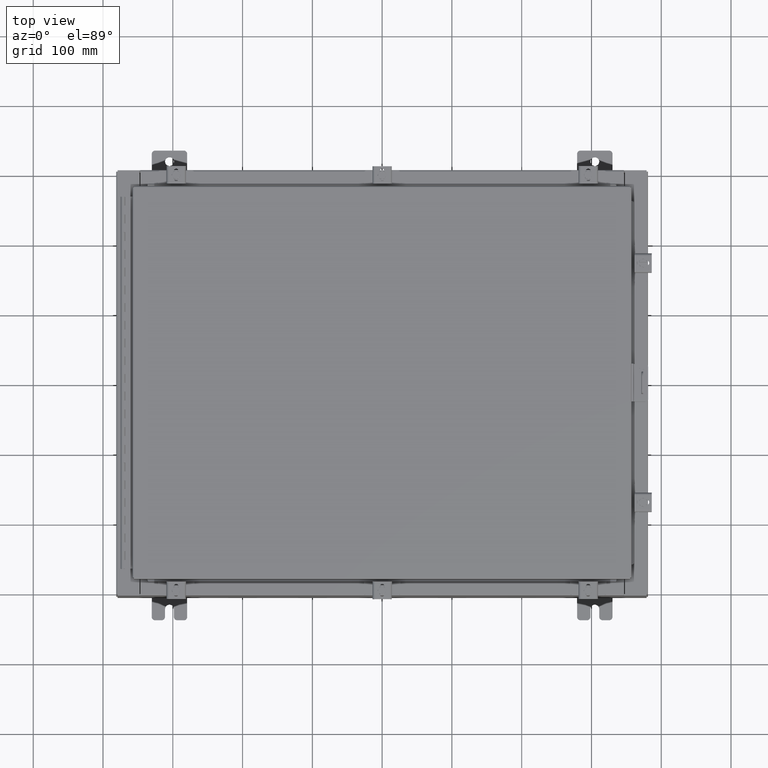
[diagram: clean part render]
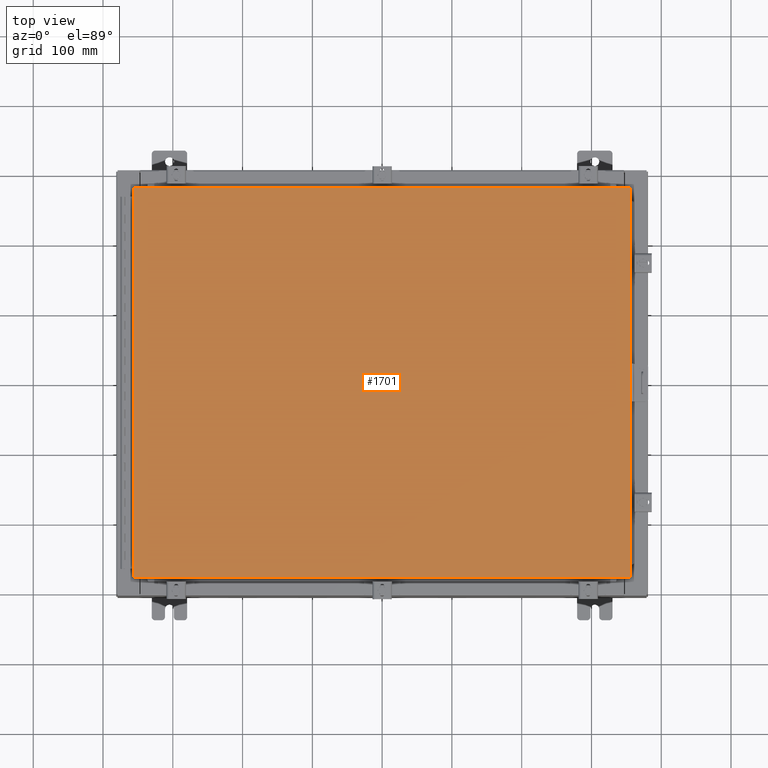
[diagram: same view with one face highlighted and labeled with its STEP entity id]
A machine part, top view. The second image highlights one B-rep face of the part: STEP entity #1701.
In plain terms, the highlighted planar face has unit normal (0, 0, -1).
Its self-contained STEP definition (entity closure, byte-faithful):
#46 = VECTOR ( 'NONE', #12079, 39.37007874015748100 ) ;
#195 = VECTOR ( 'NONE', #641, 39.37007874015748100 ) ;
#641 = DIRECTION ( 'NONE',  ( 0.0000000000000000000, 1.000000000000000000, 0.0000000000000000000 ) ) ;
#1639 = VECTOR ( 'NONE', #6820, 39.37007874015748100 ) ;
#1701 = ADVANCED_FACE ( 'NONE', ( #14315 ), #2142, .F. ) ;
#2142 = PLANE ( 'NONE',  #25126 ) ;
#2248 = VERTEX_POINT ( 'NONE', #16865 ) ;
#2523 = EDGE_CURVE ( 'NONE', #8376, #4209, #32546, .T. ) ;
#2537 = ORIENTED_EDGE ( 'NONE', *, *, #2523, .T. ) ;
#3106 = CARTESIAN_POINT ( 'NONE',  ( 13.99030000000000100, -11.00630000000000000, 0.0000000000000000000 ) ) ;
#4209 = VERTEX_POINT ( 'NONE', #14901 ) ;
#5313 = DIRECTION ( 'NONE',  ( 1.000000000000000000, -0.0000000000000000000, -0.0000000000000000000 ) ) ;
#5623 = EDGE_LOOP ( 'NONE', ( #2537, #14253, #7046, #20288 ) ) ;
#6820 = DIRECTION ( 'NONE',  ( -1.000000000000000000, -0.0000000000000000000, -0.0000000000000000000 ) ) ;
#7046 = ORIENTED_EDGE ( 'NONE', *, *, #23592, .T. ) ;
#8376 = VERTEX_POINT ( 'NONE', #15009 ) ;
#9521 = CARTESIAN_POINT ( 'NONE',  ( -13.99029999999999800, 11.00630000000000100, 0.0000000000000000000 ) ) ;
#9866 = DIRECTION ( 'NONE',  ( -1.000000000000000000, 0.0000000000000000000, -0.0000000000000000000 ) ) ;
#11442 = VECTOR ( 'NONE', #5313, 39.37007874015748100 ) ;
#12079 = DIRECTION ( 'NONE',  ( 0.0000000000000000000, -1.000000000000000000, 0.0000000000000000000 ) ) ;
#12108 = EDGE_CURVE ( 'NONE', #31019, #8376, #13622, .T. ) ;
#13622 = LINE ( 'NONE', #9521, #46 ) ;
#14253 = ORIENTED_EDGE ( 'NONE', *, *, #21506, .T. ) ;
#14315 = FACE_OUTER_BOUND ( 'NONE', #5623, .T. ) ;
#14667 = LINE ( 'NONE', #17043, #1639 ) ;
#14878 = CARTESIAN_POINT ( 'NONE',  ( 0.0000000000000000000, 0.0000000000000000000, 0.0000000000000000000 ) ) ;
#14901 = CARTESIAN_POINT ( 'NONE',  ( 13.99030000000000100, -11.00630000000000000, 0.0000000000000000000 ) ) ;
#15009 = CARTESIAN_POINT ( 'NONE',  ( -13.99029999999999600, -11.00630000000000100, -1.092739197465705300E-015 ) ) ;
#15644 = CARTESIAN_POINT ( 'NONE',  ( -13.99029999999999800, 11.00630000000000100, 0.0000000000000000000 ) ) ;
#16865 = CARTESIAN_POINT ( 'NONE',  ( 13.99030000000000100, 11.00630000000000000, -1.092739197465705300E-015 ) ) ;
#17043 = CARTESIAN_POINT ( 'NONE',  ( 13.99030000000000100, 11.00630000000000000, -1.092739197465705300E-015 ) ) ;
#20288 = ORIENTED_EDGE ( 'NONE', *, *, #12108, .T. ) ;
#20578 = LINE ( 'NONE', #3106, #195 ) ;
#21506 = EDGE_CURVE ( 'NONE', #4209, #2248, #20578, .T. ) ;
#23592 = EDGE_CURVE ( 'NONE', #2248, #31019, #14667, .T. ) ;
#25126 = AXIS2_PLACEMENT_3D ( 'NONE', #14878, #25139, #9866 ) ;
#25139 = DIRECTION ( 'NONE',  ( 0.0000000000000000000, 0.0000000000000000000, -1.000000000000000000 ) ) ;
#28180 = CARTESIAN_POINT ( 'NONE',  ( -13.99029999999999200, -11.00630000000000100, -1.092739197465705300E-015 ) ) ;
#31019 = VERTEX_POINT ( 'NONE', #15644 ) ;
#32546 = LINE ( 'NONE', #28180, #11442 ) ;